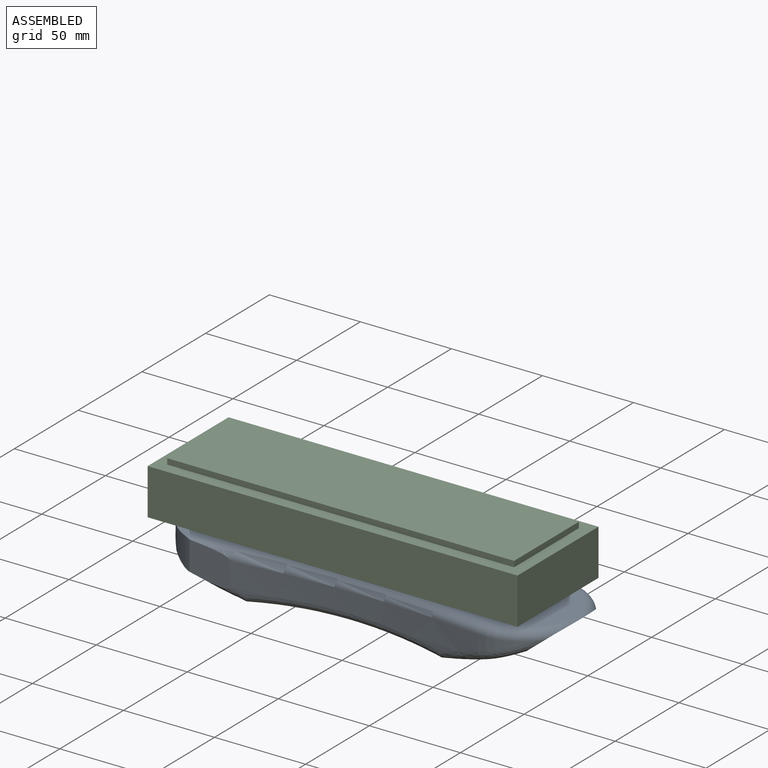
[diagram: assembled view]
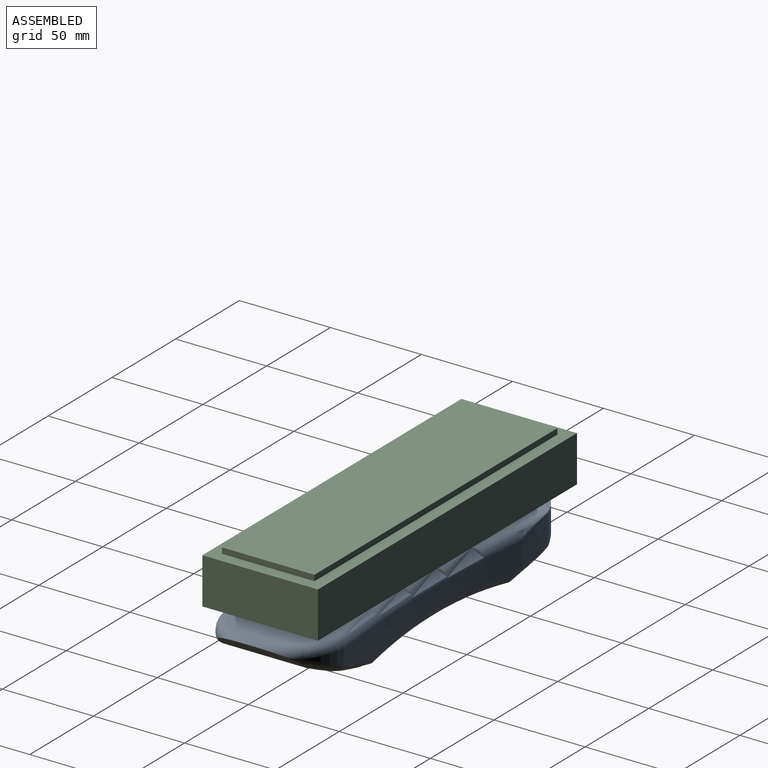
[diagram: assembled view, second angle]
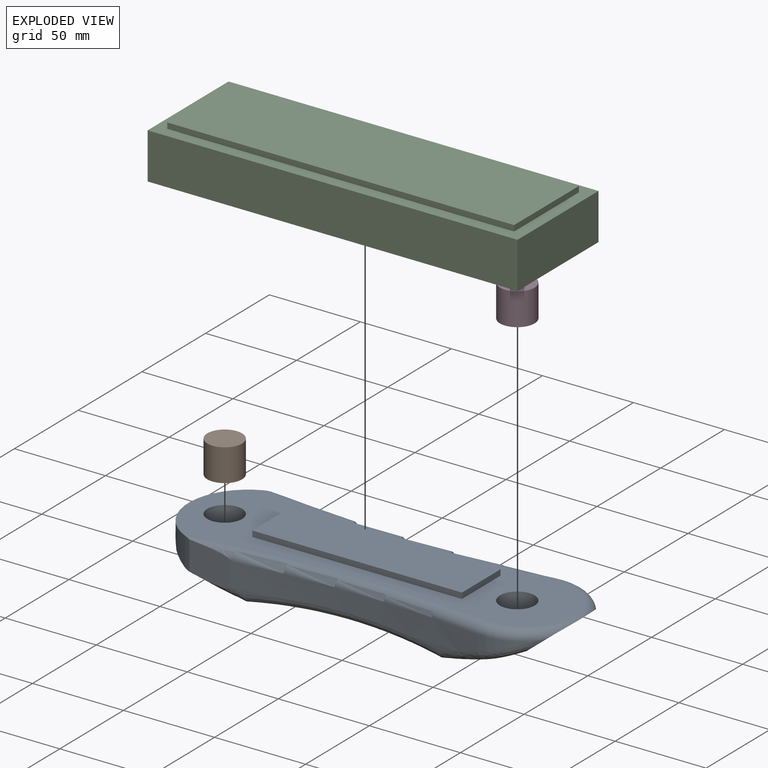
[diagram: exploded view]
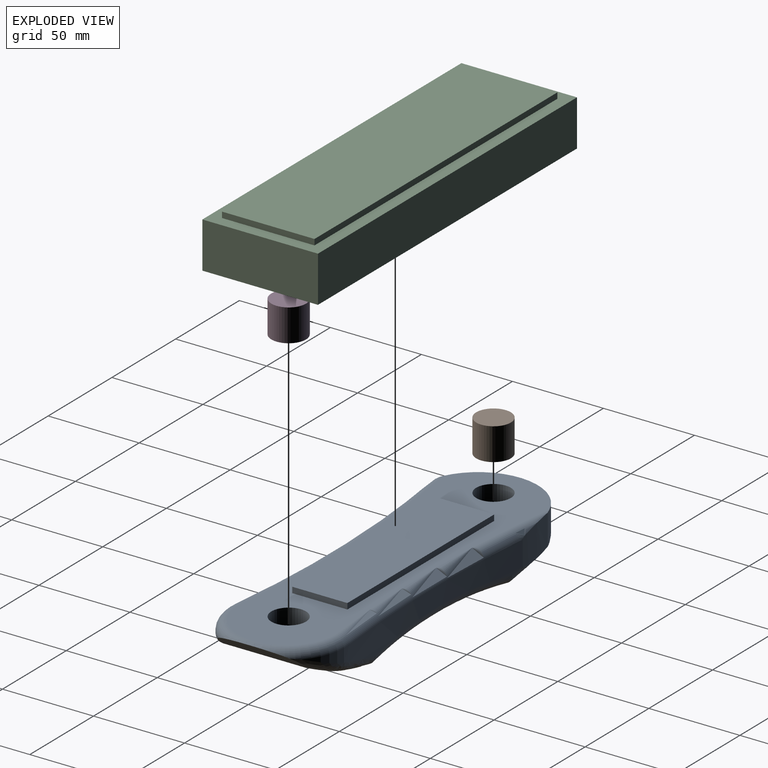
[diagram: exploded view, second angle]
ASSEMBLY  parts=4 mates=3
PART A: 41 faces, bbox 218.9x73.8x31.6 mm
  f0: plane 211.15x59.77mm, normal (0,0,1), area 6113.8mm2, adj f6,f19,f20,f24,f25,f29,f32,f34
  f1: cylinder r=32mm len=25.72mm, axis (0,0,-1), area 121.7mm2, adj f28,f29,f31
  f2: cylinder r=576.22mm len=135.68mm, axis (0,0,-1), area 1681.6mm2, adj f15,f18,f19,f23,f27,f28
  f3: cylinder r=32mm len=25.91mm, axis (0,0,-1), area 123.3mm2, adj f21,f26,f29
  f4: cylinder r=680.72mm len=135.41mm, axis (0,0,-1), area 1678.8mm2, adj f13,f14,f16,f17,f20,f21
  f5: cylinder r=189.55mm len=21.15mm, axis (0,0,-1), area 330.5mm2, adj f6,f13,f16,f20
  f6: cylinder r=32.79mm len=62.33mm, axis (0,0,-1), area 665.2mm2, adj f0,f5,f7,f8,f9,f13,f18,f19
  f7: cylinder r=5860.95mm len=21.89mm, axis (0,0,-1), area 333.9mm2, adj f6,f15,f18,f19
  f8: cylinder r=79.02mm len=45.81mm, axis (0,-1,0), area 495mm2, adj f6,f9
  f9: cylinder r=306.72mm len=59.38mm, axis (0,-1,0), area 2385.6mm2, adj f6,f8,f12,f13,f18
  f10: cylinder r=129.83mm len=44.89mm, axis (0,-1,0), area 615.7mm2, adj f11,f26,f29,f31
  f11: cylinder r=208.7mm len=53.84mm, axis (0,-1,0), area 2361.9mm2, adj f10,f12,f17,f22,f26,f27,f30,f31
  f12: cylinder r=331.88mm len=106.58mm, axis (0,-1,0), area 5093.8mm2, adj f9,f11,f13,f14,f17,f18,f23,f27
  f13: bspline ~57.56x21.57mm, area 155.9mm2, adj f4,f5,f6,f9,f12,f14,f16
  f14: bspline ~139.78x12.43mm, area 845.8mm2, adj f4,f12,f13,f17
  f15: cylinder r=5.08mm len=14.45mm, axis (0,0,-1), area 8.3mm2, adj f2,f7,f18,f19
  f16: cylinder r=5.08mm len=14.31mm, axis (0,0,1), area 7.1mm2, adj f4,f5,f13,f20
  f17: bspline ~40.09x15.19mm, area 203.3mm2, adj f4,f11,f12,f14,f22
  f18: bspline ~57.01x21.44mm, area 167mm2, adj f2,f6,f7,f9,f12,f15,f23
  f19: torus R=581.3mm, axis (0,0,1), area 1189.1mm2, adj f0,f2,f6,f7,f15,f24
  f20: torus R=685.8mm, axis (0,0,1), area 1177mm2, adj f0,f4,f5,f6,f16,f25
  f21: cylinder r=5.08mm len=8.86mm, axis (0,0,-1), area 1.2mm2, adj f3,f4,f22,f25
  f22: bspline ~5.9x5.86mm, area 1.7mm2, adj f11,f17,f21,f26
  f23: bspline ~136.36x12.11mm, area 845mm2, adj f2,f12,f18,f27
  f24: torus R=10.16mm, axis (0,0,1), area 0.1mm2, adj f0,f19,f28,f29
  f25: torus R=10.16mm, axis (0,0,1), area 1.5mm2, adj f0,f20,f21,f29
  f26: bspline ~34.21x17.57mm, area 208.9mm2, adj f3,f10,f11,f22,f29
  f27: bspline ~39.85x15.19mm, area 207.3mm2, adj f2,f11,f12,f23,f30
  f28: cylinder r=5.08mm len=8.72mm, axis (0,0,-1), area 0.1mm2, adj f1,f2,f24,f30
  f29: torus R=26.92mm, axis (0,0,1), area 671.5mm2, adj f0,f1,f3,f10,f24,f25,f26,f31
  f30: bspline ~5.97x5.89mm, area 0.2mm2, adj f11,f27,f28,f31
  f31: bspline ~33.03x17.11mm, area 207.3mm2, adj f1,f10,f11,f29,f30
  f32: cylinder r=9.53mm len=19.05mm, axis (0,0,1), area 760.1mm2, adj f0,f33
  f33: plane 19.05x19.05mm, normal (0,0,1), area 285mm2, adj f32
  f34: cylinder r=9.53mm len=19.05mm, axis (0,0,1), area 760.1mm2, adj f0,f35
  f35: plane 19.05x19.05mm, normal (0,0,1), area 285mm2, adj f34
  f36: plane 30.26x3.18mm, normal (-1,0,0), area 96.1mm2, adj f0,f37,f39,f40
  f37: plane 115.1x3.18mm, normal (0,-1,0), area 365.4mm2, adj f0,f36,f38,f40
  f38: plane 30.26x3.18mm, normal (1,0,0), area 96.1mm2, adj f0,f37,f39,f40
  f39: plane 115.1x3.18mm, normal (0,1,0), area 365.4mm2, adj f0,f36,f38,f40
  f40: plane 115.1x30.26mm, normal (0,0,1), area 3482.7mm2, adj f36,f37,f38,f39
PART B: 3 faces, bbox 19.1x19.1x17.8 mm
  f0: cylinder r=9.53mm len=19.05mm, axis (0,0,-1), area 1064.1mm2, adj f1,f2
  f1: plane 19.05x19.05mm, normal (0,0,1), area 285mm2, adj f0
  f2: plane 19.05x19.05mm, normal (0,0,-1), area 285mm2, adj f0
PART C: 15 faces, bbox 203.2x63.5x28.6 mm
  f0: plane 63.5x25.4mm, normal (1,0,0), area 1612.9mm2, adj f1,f3,f4,f5
  f1: plane 203.2x25.4mm, normal (0,1,0), area 5161.3mm2, adj f0,f2,f4,f5
  f2: plane 63.5x25.4mm, normal (-1,0,0), area 1612.9mm2, adj f1,f3,f4,f5
  f3: plane 203.2x25.4mm, normal (0,-1,0), area 5161.3mm2, adj f0,f2,f4,f5
  f4: plane 203.2x63.5mm, normal (0,0,1), area 3225.8mm2, adj f0,f1,f2,f3,f10,f11,f12,f13
  f5: plane 203.2x63.5mm, normal (0,0,-1), area 12333.2mm2, adj f0,f1,f2,f3,f6,f8
  f6: cylinder r=9.53mm len=19.05mm, axis (0,0,-1), area 760.1mm2, adj f5,f7
  f7: plane 19.05x19.05mm, normal (0,0,-1), area 285mm2, adj f6
  f8: cylinder r=9.53mm len=19.05mm, axis (0,0,-1), area 760.1mm2, adj f5,f9
  f9: plane 19.05x19.05mm, normal (0,0,-1), area 285mm2, adj f8
  f10: plane 50.8x3.18mm, normal (1,0,0), area 161.3mm2, adj f4,f11,f13,f14
  f11: plane 190.5x3.18mm, normal (0,1,0), area 604.8mm2, adj f4,f10,f12,f14
  f12: plane 50.8x3.18mm, normal (-1,0,0), area 161.3mm2, adj f4,f11,f13,f14
  f13: plane 190.5x3.18mm, normal (0,-1,0), area 604.8mm2, adj f4,f10,f12,f14
  f14: plane 190.5x50.8mm, normal (0,0,1), area 9677.4mm2, adj f10,f11,f12,f13
PART D: same geometry as B
PLACE A t=(-9.49,-3.3,-14.34)mm
PLACE B rot(axis=(1,0,0),180deg) t=(-97.13,-3.3,16.14)mm
PLACE C t=(-15.65,-3.3,16.14)mm
PLACE D rot(axis=(1,0,0),180deg) t=(63.58,-3.3,16.14)mm
MATE fastened D.f0 <-> A.f32  axis (0,0,-1) through (63.58,-3.3,-1.64)mm
MATE fastened C.f8 <-> B.f0  axis (0,0,-1) through (-97.13,-3.3,16.14)mm
MATE fastened B.f0 <-> A.f34  axis (0,0,1) through (-97.13,-3.3,-1.64)mm
